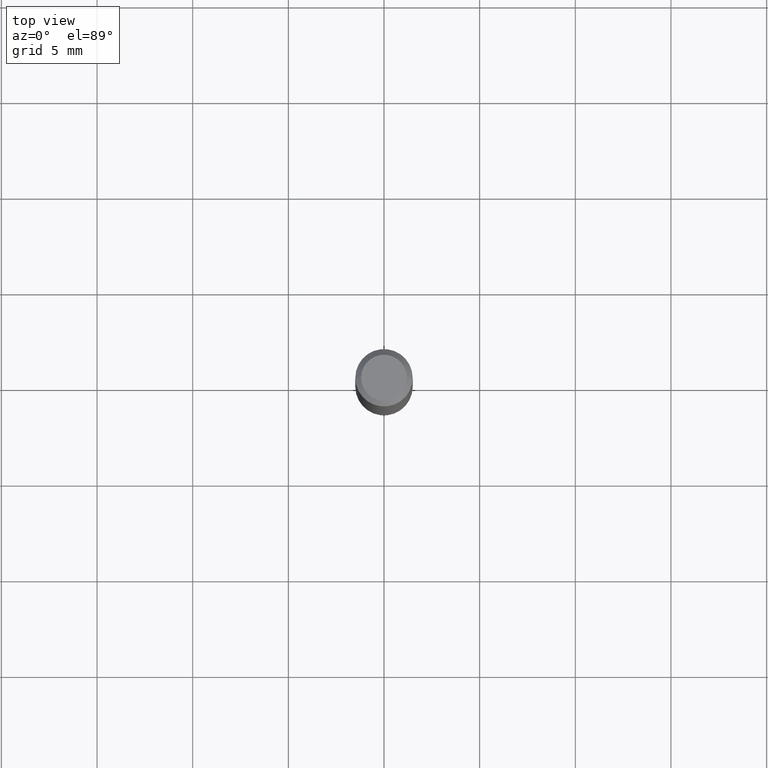
[diagram: clean part render]
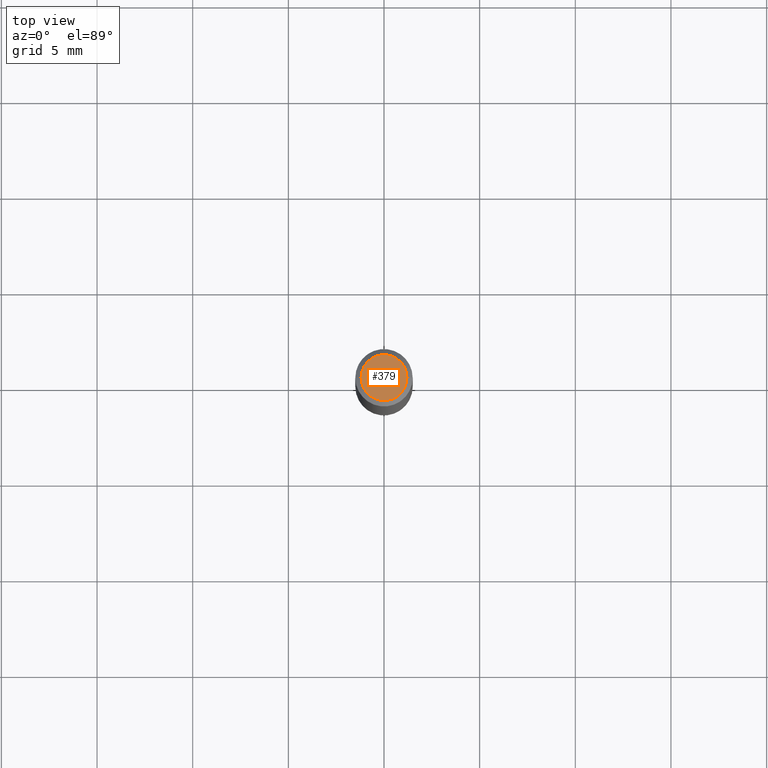
[diagram: same view with one face highlighted and labeled with its STEP entity id]
A machine part, top view. The second image highlights one B-rep face of the part: STEP entity #379.
In plain terms, the highlighted planar face has unit normal (0, -0, -1).
Its self-contained STEP definition (entity closure, byte-faithful):
#24 = DIRECTION ( 'NONE',  ( -2.445468806185136597E-29, 3.491481338843145583E-15, 1.000000000000000000 ) ) ;
#27 = CARTESIAN_POINT ( 'NONE',  ( 4.132873053354867254E-48, -5.900647395337818946E-34, -1.690012582823346072E-19 ) ) ;
#80 = CIRCLE ( 'NONE', #318, 0.04724000000000000421 ) ;
#92 = DIRECTION ( 'NONE',  ( -1.000000000000000000, 6.982962677686265922E-15, -4.876176775795935793E-29 ) ) ;
#117 = CIRCLE ( 'NONE', #194, 0.04724000000000000421 ) ;
#129 = CARTESIAN_POINT ( 'NONE',  ( -0.04724000000000000421, 3.504923541997677355E-16, -3.380025165670481712E-19 ) ) ;
#155 = ORIENTED_EDGE ( 'NONE', *, *, #405, .T. ) ;
#161 = DIRECTION ( 'NONE',  ( 2.438088387897960049E-29, -3.491481338843145188E-15, -1.000000000000000000 ) ) ;
#194 = AXIS2_PLACEMENT_3D ( 'NONE', #436, #24, #387 ) ;
#195 = CARTESIAN_POINT ( 'NONE',  ( 0.04724000000000000421, -3.852183633974369345E-16, -3.380025165621689721E-19 ) ) ;
#205 = PLANE ( 'NONE',  #300 ) ;
#237 = ORIENTED_EDGE ( 'NONE', *, *, #384, .T. ) ;
#265 = VERTEX_POINT ( 'NONE', #195 ) ;
#300 = AXIS2_PLACEMENT_3D ( 'NONE', #27, #161, #92 ) ;
#310 = DIRECTION ( 'NONE',  ( 1.000000000000000000, -6.982962677686266711E-15, 4.876185090822587894E-29 ) ) ;
#318 = AXIS2_PLACEMENT_3D ( 'NONE', #471, #475, #310 ) ;
#379 = ADVANCED_FACE ( 'NONE', ( #467 ), #205, .F. ) ;
#381 = VERTEX_POINT ( 'NONE', #129 ) ;
#384 = EDGE_CURVE ( 'NONE', #265, #381, #117, .T. ) ;
#387 = DIRECTION ( 'NONE',  ( 1.000000000000000000, -6.982962677686266711E-15, 4.876185090822587894E-29 ) ) ;
#389 = EDGE_LOOP ( 'NONE', ( #155, #237 ) ) ;
#405 = EDGE_CURVE ( 'NONE', #381, #265, #80, .T. ) ;
#436 = CARTESIAN_POINT ( 'NONE',  ( 8.265746106709734507E-48, -1.180129479067563789E-33, -3.380025165646692144E-19 ) ) ;
#467 = FACE_OUTER_BOUND ( 'NONE', #389, .T. ) ;
#471 = CARTESIAN_POINT ( 'NONE',  ( 8.265746106709734507E-48, -1.180129479067563789E-33, -3.380025165646692144E-19 ) ) ;
#475 = DIRECTION ( 'NONE',  ( -2.445468806185136597E-29, 3.491481338843145583E-15, 1.000000000000000000 ) ) ;